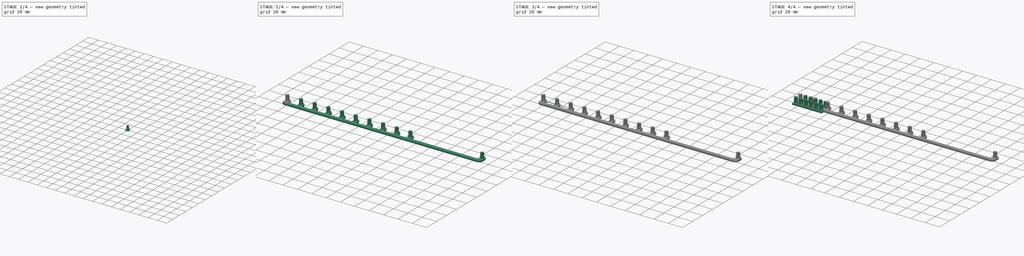
[diagram: build sequence overview — one tinted view per stage of 4, left to right]
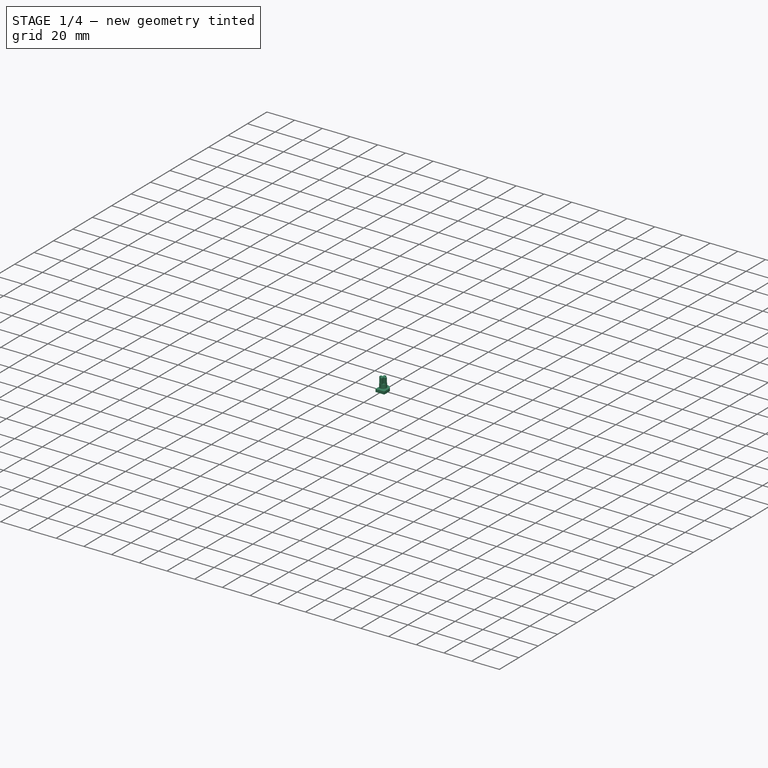
[diagram: stage 1 of 4 — iso view after this stage's code; geometry added in this stage tinted green]
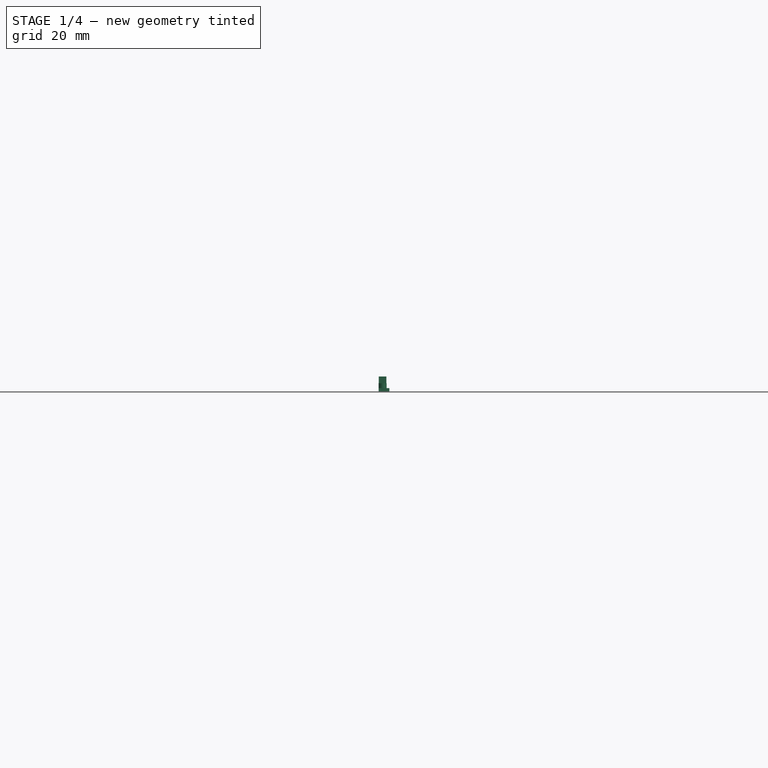
[diagram: stage 1 of 4 — front view after this stage's code; geometry added in this stage tinted green]
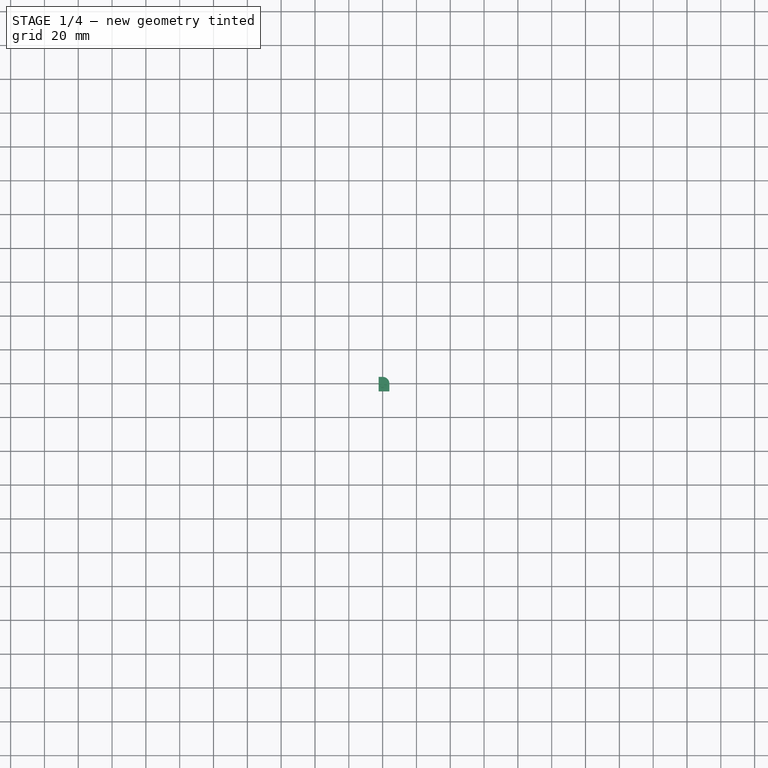
[diagram: stage 1 of 4 — top view after this stage's code; geometry added in this stage tinted green]
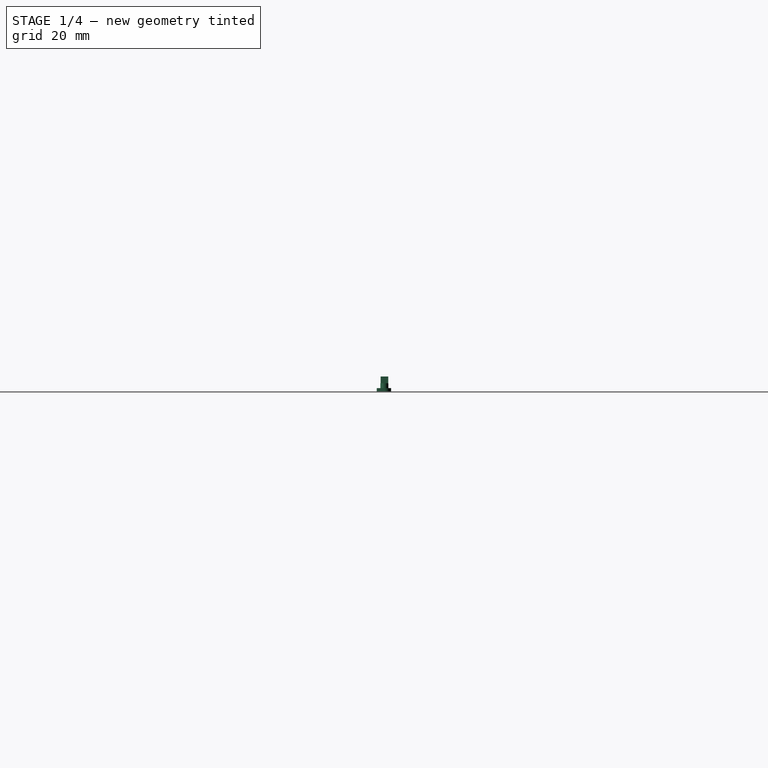
[diagram: stage 1 of 4 — right view after this stage's code; geometry added in this stage tinted green]
FCSTD DOCUMENT  (FreeCAD 0.21R33668 +26 (Git))
Label: ConsoleKeyAdapter
License: All rights reserved
LicenseURL: http://en.wikipedia.org/wiki/All_rights_reserved
objects: Part::FeaturePython×9, Sketcher::SketchObject×4, PartDesign::Pad×4, Part::Part2DObjectPython×2, PartDesign::Body×2, Part::Cylinder×2, Part::Compound×1, PartDesign::SubShapeBinder×1
note: 29 computed .brp shape members not serialized (recipe doc carries the construction recipe); baked Part::Feature solids carry a one-line shape summary decoded from their .brp

FEATURE [Sketcher::SketchObject] Sketch  label="CrossSketch"
  FullyConstrained = true
  MapMode = 5
  Support = -> [XY_Plane]
  sketch-geometry (44):
    g0: LineSegment StartX=-0.725 StartY=2.25 StartZ=0 EndX=0.725 EndY=2.25 EndZ=0
    g1: LineSegment StartX=0.725 StartY=2.25 StartZ=0 EndX=0.725 EndY=1.7375 EndZ=0
    g2: LineSegment StartX=0.725 StartY=1.7375 StartZ=0 EndX=0.775 EndY=1.7375 EndZ=0
    g3: LineSegment StartX=0.775 StartY=1.7375 StartZ=0 EndX=0.775 EndY=1.2375 EndZ=0
    g4: LineSegment StartX=0.775 StartY=1.2375 StartZ=0 EndX=0.725 EndY=1.2375 EndZ=0
    g5: LineSegment StartX=0.725 StartY=1.2375 StartZ=0 EndX=0.725 EndY=0.725 EndZ=0
    g6: LineSegment StartX=0.725 StartY=0.725 StartZ=0 EndX=1.2375 EndY=0.725 EndZ=0
    g7: LineSegment StartX=1.2375 StartY=0.725 StartZ=0 EndX=1.2375 EndY=0.775 EndZ=0
    g8: LineSegment StartX=1.2375 StartY=0.775 StartZ=0 EndX=1.7375 EndY=0.775 EndZ=0
    g9: LineSegment StartX=1.7375 StartY=0.775 StartZ=0 EndX=1.7375 EndY=0.725 EndZ=0
    g10: LineSegment StartX=1.7375 StartY=0.725 StartZ=0 EndX=2.25 EndY=0.725 EndZ=0
    g11: LineSegment StartX=2.25 StartY=0.725 StartZ=0 EndX=2.25 EndY=-0.725 EndZ=0
    g12: LineSegment StartX=2.25 StartY=-0.725 StartZ=0 EndX=1.7375 EndY=-0.725 EndZ=0
    g13: LineSegment StartX=1.7375 StartY=-0.725 StartZ=0 EndX=1.7375 EndY=-0.775 EndZ=0
    g14: LineSegment StartX=1.7375 StartY=-0.775 StartZ=0 EndX=1.2375 EndY=-0.775 EndZ=0
    g15: LineSegment StartX=1.2375 StartY=-0.775 StartZ=0 EndX=1.2375 EndY=-0.725 EndZ=0
    g16: LineSegment StartX=1.2375 StartY=-0.725 StartZ=0 EndX=0.725 EndY=-0.725 EndZ=0
    g17: LineSegment StartX=0.725 StartY=-0.725 StartZ=0 EndX=0.725 EndY=-1.2375 EndZ=0
    g18: LineSegment StartX=0.725 StartY=-1.2375 StartZ=0 EndX=0.775 EndY=-1.2375 EndZ=0
    g19: LineSegment StartX=0.775 StartY=-1.2375 StartZ=0 EndX=0.775 EndY=-1.7375 EndZ=0
    g20: LineSegment StartX=0.775 StartY=-1.7375 StartZ=0 EndX=0.725 EndY=-1.7375 EndZ=0
    g21: LineSegment StartX=0.725 StartY=-1.7375 StartZ=0 EndX=0.725 EndY=-2.25 EndZ=0
    g22: LineSegment StartX=0.725 StartY=-2.25 StartZ=0 EndX=-0.725 EndY=-2.25 EndZ=0
    g23: LineSegment StartX=-0.725 StartY=-2.25 StartZ=0 EndX=-0.725 EndY=-1.7375 EndZ=0
    g24: LineSegment StartX=-0.725 StartY=-1.7375 StartZ=0 EndX=-0.775 EndY=-1.7375 EndZ=0
    g25: LineSegment StartX=-0.775 StartY=-1.7375 StartZ=0 EndX=-0.775 EndY=-1.2375 EndZ=0
    g26: LineSegment StartX=-0.775 StartY=-1.2375 StartZ=0 EndX=-0.725 EndY=-1.2375 EndZ=0
    g27: LineSegment StartX=-0.725 StartY=-1.2375 StartZ=0 EndX=-0.725 EndY=-0.725 EndZ=0
    g28: LineSegment StartX=-0.725 StartY=-0.725 StartZ=0 EndX=-1.2375 EndY=-0.725 EndZ=0
    g29: LineSegment StartX=-1.2375 StartY=-0.725 StartZ=0 EndX=-1.2375 EndY=-0.775 EndZ=0
    g30: LineSegment StartX=-1.2375 StartY=-0.775 StartZ=0 EndX=-1.7375 EndY=-0.775 EndZ=0
    g31: LineSegment StartX=-1.7375 StartY=-0.775 StartZ=0 EndX=-1.7375 EndY=-0.725 EndZ=0
    g32: LineSegment StartX=-1.7375 StartY=-0.725 StartZ=0 EndX=-2.25 EndY=-0.725 EndZ=0
    g33: LineSegment StartX=-2.25 StartY=-0.725 StartZ=0 EndX=-2.25 EndY=0.725 EndZ=0
    g34: LineSegment StartX=-2.25 StartY=0.725 StartZ=0 EndX=-1.7375 EndY=0.725 EndZ=0
    g35: LineSegment StartX=-1.7375 StartY=0.725 StartZ=0 EndX=-1.7375 EndY=0.775 EndZ=0
    g36: LineSegment StartX=-1.7375 StartY=0.775 StartZ=0 EndX=-1.2375 EndY=0.775 EndZ=0
    g37: LineSegment StartX=-1.2375 StartY=0.775 StartZ=0 EndX=-1.2375 EndY=0.725 EndZ=0
    g38: LineSegment StartX=-1.2375 StartY=0.725 StartZ=0 EndX=-0.725 EndY=0.725 EndZ=0
    g39: LineSegment StartX=-0.725 StartY=0.725 StartZ=0 EndX=-0.725 EndY=1.2375 EndZ=0
    g40: LineSegment StartX=-0.725 StartY=1.2375 StartZ=0 EndX=-0.775 EndY=1.2375 EndZ=0
    g41: LineSegment StartX=-0.775 StartY=1.2375 StartZ=0 EndX=-0.775 EndY=1.7375 EndZ=0
    g42: LineSegment StartX=-0.775 StartY=1.7375 StartZ=0 EndX=-0.725 EndY=1.7375 EndZ=0
    g43: LineSegment StartX=-0.725 StartY=1.7375 StartZ=0 EndX=-0.725 EndY=2.25 EndZ=0
  constraints (130):
    c: Horizontal(g0)
    c: Coincident(g0,g1)
    c: Vertical(g1)
    c: Coincident(g1,g2)
    c: Horizontal(g2)
    c: Coincident(g2,g3)
    c: Vertical(g3)
    c: Coincident(g3,g4)
    c: Horizontal(g4)
    c: Coincident(g4,g5)
    c: Vertical(g5)
    c: Coincident(g5,g6)
    c: Horizontal(g6)
    c: Coincident(g6,g7)
    c: Vertical(g7)
    c: Coincident(g7,g8)
    c: Horizontal(g8)
    c: Coincident(g8,g9)
    c: Vertical(g9)
    c: Coincident(g9,g10)
    c: Horizontal(g10)
    c: Coincident(g10,g11)
    c: Vertical(g11)
    c: Coincident(g11,g12)
    c: Horizontal(g12)
    c: Coincident(g12,g13)
    c: Coincident(g13,g14)
    c: Horizontal(g14)
    c: Coincident(g14,g15)
    c: Vertical(g15)
    c: Coincident(g15,g16)
    c: Horizontal(g16)
    c: Coincident(g16,g17)
    c: Vertical(g17)
    c: Coincident(g17,g18)
    c: Horizontal(g18)
    c: Coincident(g18,g19)
    c: Vertical(g19)
    c: Coincident(g19,g20)
    c: Horizontal(g20)
    c: Coincident(g20,g21)
    c: Vertical(g21)
    c: Coincident(g21,g22)
    c: Horizontal(g22)
    c: Coincident(g22,g23)
    c: Vertical(g23)
    c: Coincident(g23,g24)
    c: Horizontal(g24)
    c: Coincident(g24,g25)
    c: Vertical(g25)
    c: Coincident(g25,g26)
    c: Horizontal(g26)
    c: Coincident(g26,g27)
    c: Vertical(g27)
    c: Coincident(g27,g28)
    c: Horizontal(g28)
    c: Coincident(g28,g29)
    c: Vertical(g29)
    c: Coincident(g29,g30)
    c: Horizontal(g30)
    c: Coincident(g30,g31)
    c: Vertical(g31)
    c: Coincident(g31,g32)
    c: Horizontal(g32)
    c: Coincident(g32,g33)
    c: Vertical(g33)
    c: Coincident(g33,g34)
    c: Horizontal(g34)
    c: Coincident(g34,g35)
    c: Vertical(g35)
    c: Coincident(g35,g36)
    c: Horizontal(g36)
    c: Coincident(g36,g37)
    c: Vertical(g37)
    c: Coincident(g37,g38)
    c: Horizontal(g38)
    c: Coincident(g38,g39)
    c: Vertical(g39)
    c: Coincident(g39,g40)
    c: Horizontal(g40)
    c: Coincident(g40,g41)
    c: Vertical(g41)
    c: Coincident(g41,g42)
    c: Horizontal(g42)
    c: Coincident(g42,g43)
    c: Coincident(g43,g0)
    c: Vertical(g43)
    c: Horizontal(g38,g5)
    c: Vertical(g38,g27)
    c: Vertical(g26,g23)
    c: Vertical(g17,g20)
    c: Vertical(g1,g4)
    c: Vertical(g42,g39)
    c: Vertical(g34,g31)
    c: Vertical(g37,g28)
    c: Vertical(g6,g15)
    c: Vertical(g9,g12)
    c: Vertical(g13)
    c: Horizontal(g42,g1)
    c: Horizontal(g39,g4)
    c: Horizontal(g26,g17)
    c: Horizontal(g23,g20)
    c: Horizontal(g29,g14)
    c: Horizontal(g36,g7)
    c: Horizontal(g9,g6)
    c: Horizontal(g34,g37)
    c: Vertical(g3,g18)
    c: Vertical(g40,g25)
    c: Symmetric(g27,g5,g-1)
    c: Symmetric(g38,g16,g-1)
    c: Equal(g2,g7)
    c: Equal(g2,g42)
    c: Equal(g43,g39)
    c: Equal(g34,g38)
    c: Equal(g39,g38)
    c: Horizontal(g31,g28)
    c: Horizontal(g15,g12)
    c: Equal(g2,g15)
    c: Equal(g6,g10)
    c: Equal(g38,g6)
    c: Equal(g0,g33)
    c: Equal(g19,g3)
    c: Equal(g8,g3)
    c: Equal(g36,g8)
    c: Equal(g21,g17)
    c: Equal(g5,g17)
    c: DistanceX(g2,g2) = 0.05
    c: DistanceX(g36,g36) = 0.5
    c: DistanceX(g0,g0) = 1.45
    c: DistanceX(g33,g10) = 4.5
FEATURE [PartDesign::Pad] Pad  label="CrossPad"
  Direction = (0,0,1)
  Length = 4
  Length2 = 10
  Profile = -> Sketch
  ReferenceAxis = -> Sketch [N_Axis]
  Type = 0
FEATURE [Part::Part2DObjectPython] LinearArray  # Draft 2D object (typed FeaturePython)
  Alignment = 0
  AttacherType = Attacher::AttachEngine3D
  CellStart = A1
  Count = 6
  Dir = (1,0,0)
  DirIsDriven = true
  DistributionLaw = 0
  DrivenProperty = 1
  EndInclusive = true
  ExposePlacement = false
  GeneratorMode = 1
  MarkerShape = 1
  MarkerSize = 0
  NumElements = 6
  OrientMode = 1
  Point = (0,0,0)
  PointIsDriven = true
  Reverse = false
  SpanEnd = 0
  SpanStart = 0
  Step = 7
  Type = lattice2LinearArray.LinearArray
  VSGVersion = 1
  Values = 0.0 | 7.0 | 14.0 | 21.0 | 28.0 | 35.0
  ValuesSource = 2
  isLattice = 1
FEATURE [Part::Part2DObjectPython] LinearArray001  # Draft 2D object (typed FeaturePython)
  Alignment = 0
  AttacherType = Attacher::AttachEngine3D
  CellStart = A1
  Count = 2
  Dir = (0,-1,0)
  DirIsDriven = true
  DistributionLaw = 0
  DrivenProperty = 1
  EndInclusive = true
  ExposePlacement = false
  GeneratorMode = 1
  MarkerShape = 1
  MarkerSize = 0
  NumElements = 2
  OrientMode = 0
  Point = (0,0,0)
  PointIsDriven = true
  Reverse = false
  SpanEnd = 9
  SpanStart = 0
  Step = 9
  Type = lattice2LinearArray.LinearArray
  VSGVersion = 1
  Values = 0.0 | 9.0
  ValuesSource = 2
  isLattice = 1
FEATURE [Sketcher::SketchObject] Sketch001  label="StemSketch"
  ExternalGeometry = -> [Pad]
  FullyConstrained = true
  MapMode = 5
  Support = -> [XY_Plane]
  sketch-geometry (1):
    g0: Circle CenterX=0 CenterY=0 CenterZ=0 NormalX=0 NormalY=0 NormalZ=1 AngleXU=0 Radius=2.36392
  constraints (2):
    c: Coincident(g0,g-1)
    c: PointOnObject(g-3,g0)
FEATURE [PartDesign::Pad] Pad001  label="StemPad"
  BaseFeature = -> Pad
  Direction = (0,0,1)
  Length = 2.9
  Length2 = 10
  Profile = -> Sketch001
  ReferenceAxis = -> Sketch001 [N_Axis]
  Reversed = true
  Type = 0
FEATURE [Sketcher::SketchObject] Sketch002  label="BaseSketch"
  ExternalGeometry = -> [Pad001]
  FullyConstrained = true
  MapMode = 5
  Placement = pos=(0,0,-2.9) rot=(1,0,0;3.14159rad)
  Support = -> [Pad001]
  sketch-geometry (5):
    g0: LineSegment StartX=-2.36392 StartY=-4 StartZ=0 EndX=-2.36392 EndY=4.5 EndZ=0
    g1: LineSegment StartX=-2.36392 StartY=4.5 StartZ=0 EndX=4 EndY=4.5 EndZ=0
    g2: ArcOfCircle CenterX=0 CenterY=0 CenterZ=0 NormalX=0 NormalY=0 NormalZ=1 AngleXU=0 Radius=4 StartAngle=4.71239 EndAngle=6.28319
    g3: LineSegment StartX=-7e-16 StartY=-4 StartZ=0 EndX=-2.36392 EndY=-4 EndZ=0
    g4: LineSegment StartX=4 StartY=4.5 StartZ=0 EndX=4 EndY=-9e-16 EndZ=0
  constraints (14):
    c: Vertical(g0)
    c: Coincident(g0,g1)
    c: Horizontal(g1)
    c: Tangent(g2,g3) = 1.5708
    c: Coincident(g3,g0)
    c: Horizontal(g3)
    c: Coincident(g2,g-3)
    c: Tangent(g0,g-3)
    c: Diameter(g2) = 8
    c: PointOnObject(g2,g-1)
    c: Coincident(g4,g1)
    c: Coincident(g4,g2)
    c: Vertical(g4)
    c: DistanceY(g4,g4) = 4.5
FEATURE [PartDesign::Pad] Pad002  label="BasePad"
  BaseFeature = -> Pad001
  Direction = (0,0,-1)
  Length = 2
  Length2 = 10
  Profile = -> Sketch002
  ReferenceAxis = -> Sketch002 [N_Axis]
  Type = 0
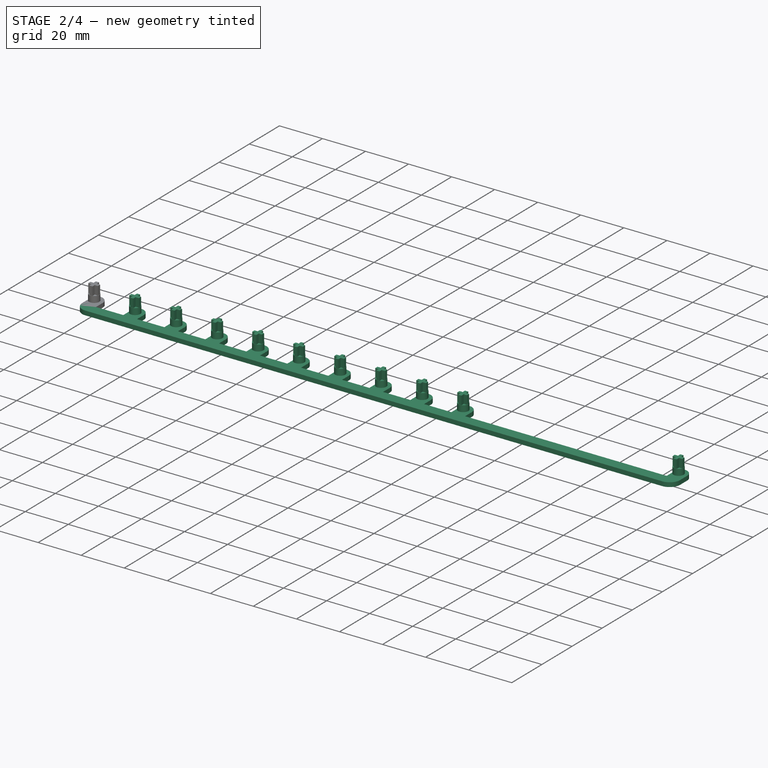
[diagram: stage 2 of 4 — iso view after this stage's code; geometry added in this stage tinted green]
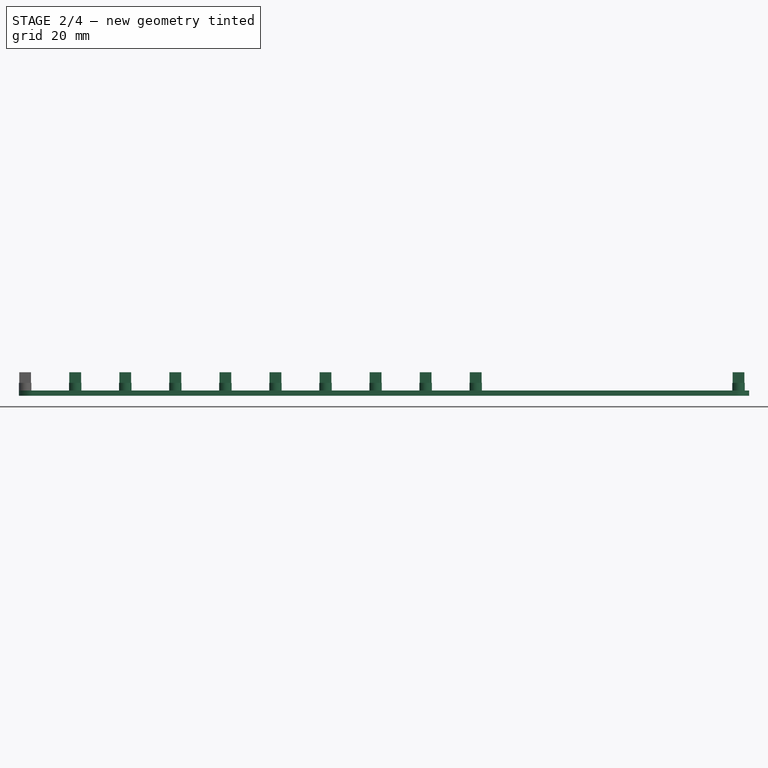
[diagram: stage 2 of 4 — front view after this stage's code; geometry added in this stage tinted green]
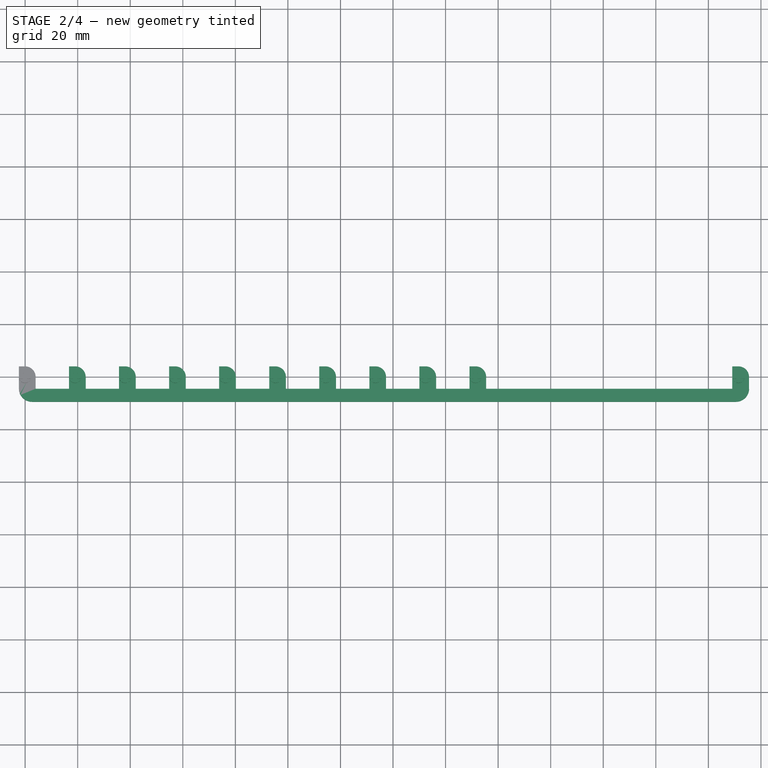
[diagram: stage 2 of 4 — top view after this stage's code; geometry added in this stage tinted green]
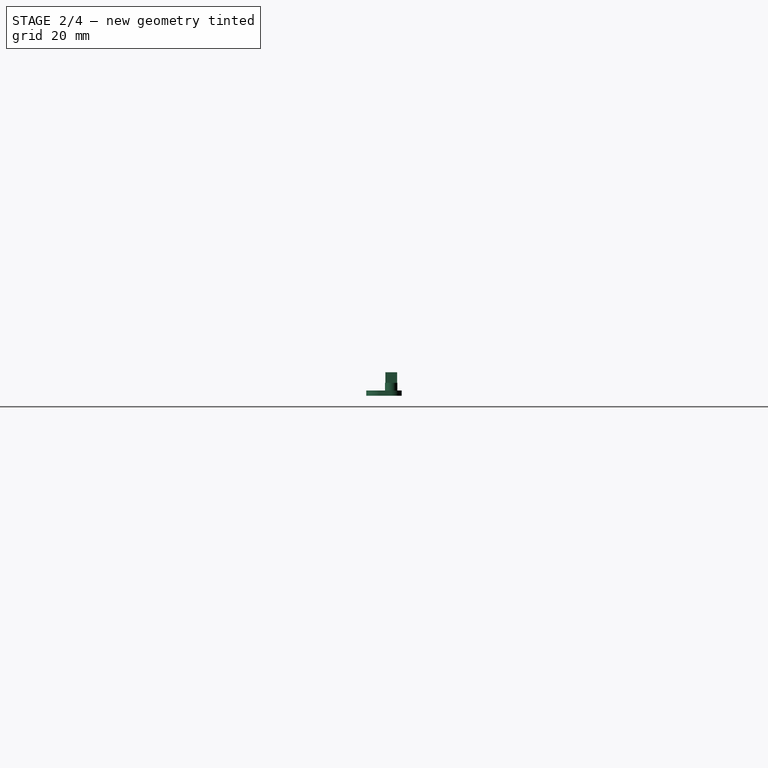
[diagram: stage 2 of 4 — right view after this stage's code; geometry added in this stage tinted green]
FEATURE [Part::FeaturePython] LinearArray002  label="10ConsoleKeysLinearArray"  # WARN: FeaturePython — macro-defined, semantics opaque (R4)
  Alignment = 0
  CellStart = A1
  Count = 10
  Dir = (1,0,0)
  DirIsDriven = true
  DistributionLaw = 0
  DrivenProperty = 1
  EndInclusive = true
  ExposePlacement = false
  GeneratorMode = 1
  MarkerShape = 1
  MarkerSize = 0
  NumElements = 10
  OrientMode = 1
  Point = (0,0,0)
  PointIsDriven = true
  Reverse = false
  SpanEnd = 10
  SpanStart = 0
  Step = 19.05
  Type = lattice2LinearArray.LinearArray
  VSGVersion = 1
  Values = 0.0 | 19.05 | 38.1 | 57.150000000000006 | 76.2 | 95.25 | 114.30000000000001 | 133.35 | 152.4 | 171.45000000000002
  ValuesSource = 2
  isLattice = 1
FEATURE [Part::FeaturePython] LinearArray003  label="ResetKeyLinearArray"  # WARN: FeaturePython — macro-defined, semantics opaque (R4)
  Alignment = 0
  CellStart = A1
  Count = 1
  Dir = (1,0,0)
  DirIsDriven = true
  DistributionLaw = 0
  DrivenProperty = 1
  EndInclusive = true
  ExposePlacement = false
  GeneratorMode = 1
  MarkerShape = 1
  MarkerSize = 20
  NumElements = 1
  Offset = 14.25
  OrientMode = 1
  Point = (0,0,0)
  PointIsDriven = true
  Reverse = false
  SpanEnd = 50
  SpanStart = 0
  Step = 19.05
  Type = lattice2LinearArray.LinearArray
  VSGVersion = 1
  Values = 271.46250000000003
  ValuesSource = 2
  isLattice = 1
FEATURE [Part::FeaturePython] Join  # WARN: FeaturePython — macro-defined, semantics opaque (R4)
  ExposePlacement = false
  Interleave = false
  Links = -> [LinearArray002,LinearArray003]
  MarkerShape = 1
  MarkerSize = 0
  NumElements = 11
  Type = lattice2JoinArrays.JoinArrays
  isLattice = 1
FEATURE [Part::FeaturePython] Populate004  label="Populate Join with BasePad"  # WARN: FeaturePython — macro-defined, semantics opaque (R4)
  Copying = 0
  ExposePlacement = false
  MarkerShape = 1
  MarkerSize = 0
  NumElements = 0
  Object = -> Pad002
  OutputCompounding = 1
  PlacementsTo = -> Join
  Referencing = 0
  Type = lattice2PopulateCopies.LatticePopulateCopies
  isLattice = 0
FEATURE [PartDesign::SubShapeBinder] Binder
  BindCopyOnChange = 0
  BindMode = 0
  ClaimChildren = false
  Context = -> Body [Binder.]
  Fuse = false
  MakeFace = true
  OffsetFill = false
  OffsetIntersection = false
  OffsetJoinType = 0
  OffsetOpenResult = false
  PartialLoad = false
  Relative = true
  Support = -> [Pad002]
  _Version = 2
FEATURE [Sketcher::SketchObject] Sketch003
  ExternalGeometry = -> [Binder]
  FullyConstrained = true
  MapMode = 5
  Support = -> [XY_Plane001]
  sketch-geometry (4):
    g0: LineSegment StartX=-2.36392 StartY=-4.5 StartZ=0 EndX=275.496 EndY=-4.5 EndZ=0
    g1: ArcOfCircle CenterX=270.496 CenterY=-4.5 CenterZ=0 NormalX=0 NormalY=0 NormalZ=1 AngleXU=0 Radius=5 StartAngle=4.71239 EndAngle=6.28319
    g2: LineSegment StartX=270.496 StartY=-9.5 StartZ=0 EndX=2.63608 EndY=-9.5 EndZ=0
    g3: ArcOfCircle CenterX=2.63608 CenterY=-4.5 CenterZ=0 NormalX=0 NormalY=0 NormalZ=1 AngleXU=0 Radius=5 StartAngle=3.14159 EndAngle=4.71239
  constraints (12):
    c: Horizontal(g0)
    c: Perpendicular(g0,g1) = 1.5708
    c: Coincident(g1,g2)
    c: Horizontal(g2)
    c: Coincident(g3,g0)
    c: PointOnObject(g3,g0)
    c: Vertical(g3,g2)
    c: Coincident(g3,g2)
    c: DistanceY(g2,g3) = 5
    c: Vertical(g1,g1)
    c: DistanceX(g0,g0) = 277.86
    c: Coincident(g0,g-3)
FEATURE [PartDesign::Pad] Pad003
  Direction = (0,0,1)
  Length = 2
  Length2 = 10
  Profile = -> Sketch003
  ReferenceAxis = -> Sketch003 [N_Axis]
  Type = 0
FEATURE [PartDesign::Body] Body001  label="Body"
  Group = -> [Sketch003,Binder,Pad003]
  Origin = -> Origin001
  Placement = pos=(0,0,-4.9) rot=(0,0,1;0rad)
  Tip = -> Pad003
FEATURE [Part::FeaturePython] Connect  # WARN: FeaturePython — macro-defined, semantics opaque (R4)
  Objects = -> [Body001,Populate004]
  Refine = true
  Tolerance = 0
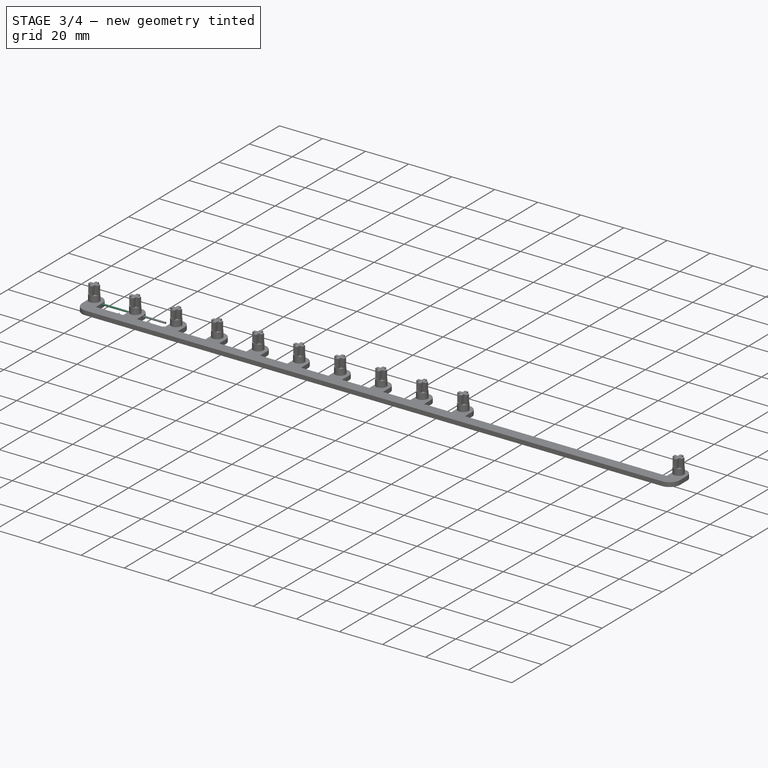
[diagram: stage 3 of 4 — iso view after this stage's code; geometry added in this stage tinted green]
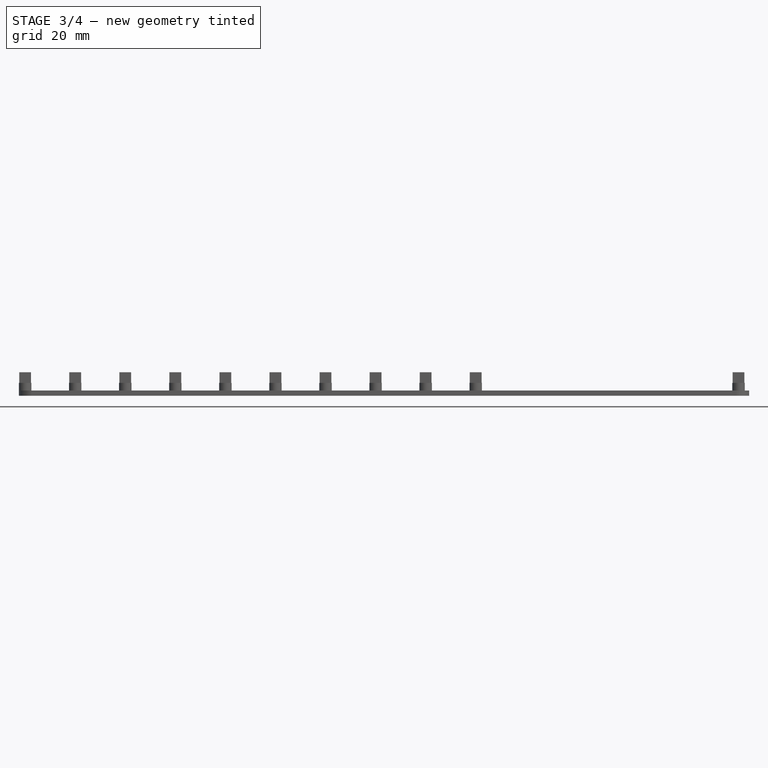
[diagram: stage 3 of 4 — front view after this stage's code; geometry added in this stage tinted green]
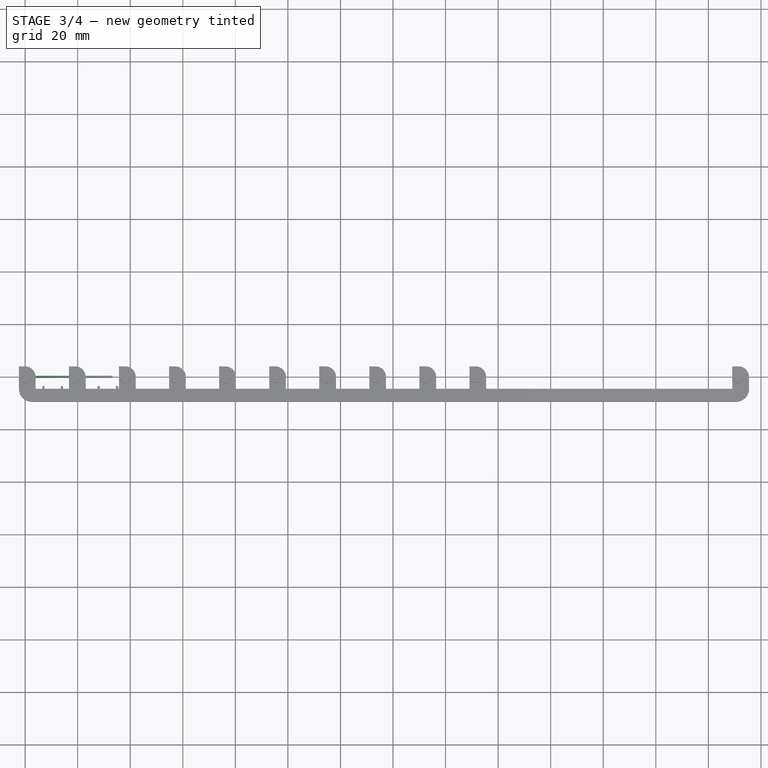
[diagram: stage 3 of 4 — top view after this stage's code; geometry added in this stage tinted green]
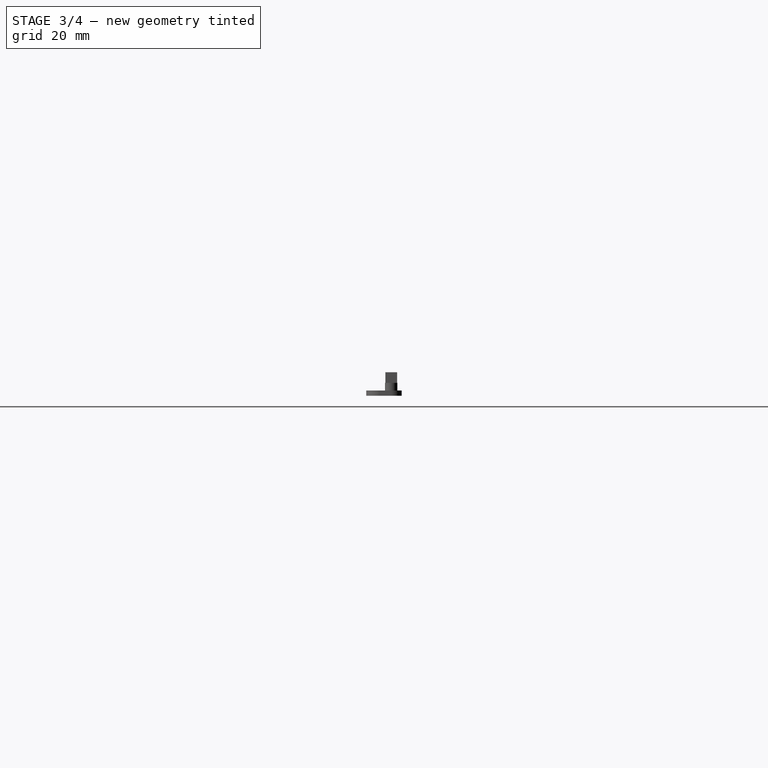
[diagram: stage 3 of 4 — right view after this stage's code; geometry added in this stage tinted green]
FEATURE [Part::Cylinder] Cylinder
  Angle = 360
  AttacherType = Attacher::AttachEngine3D
  FirstAngle = 0
  Height = 2
  Placement = pos=(0,-3.5,-3.5) rot=(1,0,0;1.5708rad)
  Radius = 0.4
  SecondAngle = 0
FEATURE [Part::FeaturePython] Populate002  label="Populate LinearArray with Cylinder"  # WARN: FeaturePython — macro-defined, semantics opaque (R4)
  Copying = 0
  ExposePlacement = false
  MarkerShape = 1
  MarkerSize = 0
  NumElements = 0
  Object = -> Cylinder
  OutputCompounding = 1
  PlacementsTo = -> LinearArray
  Referencing = 0
  Type = lattice2PopulateCopies.LatticePopulateCopies
  isLattice = 0
FEATURE [Part::Cylinder] Cylinder001
  Angle = 360
  AttacherType = Attacher::AttachEngine3D
  FirstAngle = 0
  Height = 30
  Placement = pos=(3.25,0,-3.5) rot=(0,1,0;1.5708rad)
  Radius = 0.4
  SecondAngle = 0
FEATURE [Part::FeaturePython] Populate003  label="Populate LinearArray001 with Cylinder001"  # WARN: FeaturePython — macro-defined, semantics opaque (R4)
  Copying = 0
  ExposePlacement = false
  MarkerShape = 1
  MarkerSize = 0
  NumElements = 0
  Object = -> Cylinder001
  OutputCompounding = 1
  PlacementsTo = -> LinearArray001
  Referencing = 0
  Type = lattice2PopulateCopies.LatticePopulateCopies
  isLattice = 0
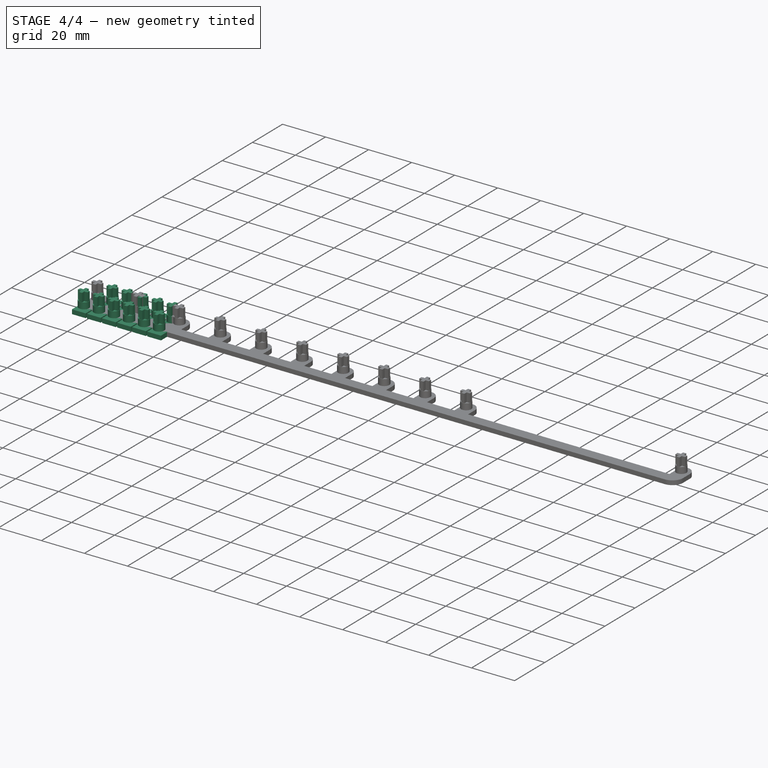
[diagram: stage 4 of 4 — iso view after this stage's code; geometry added in this stage tinted green]
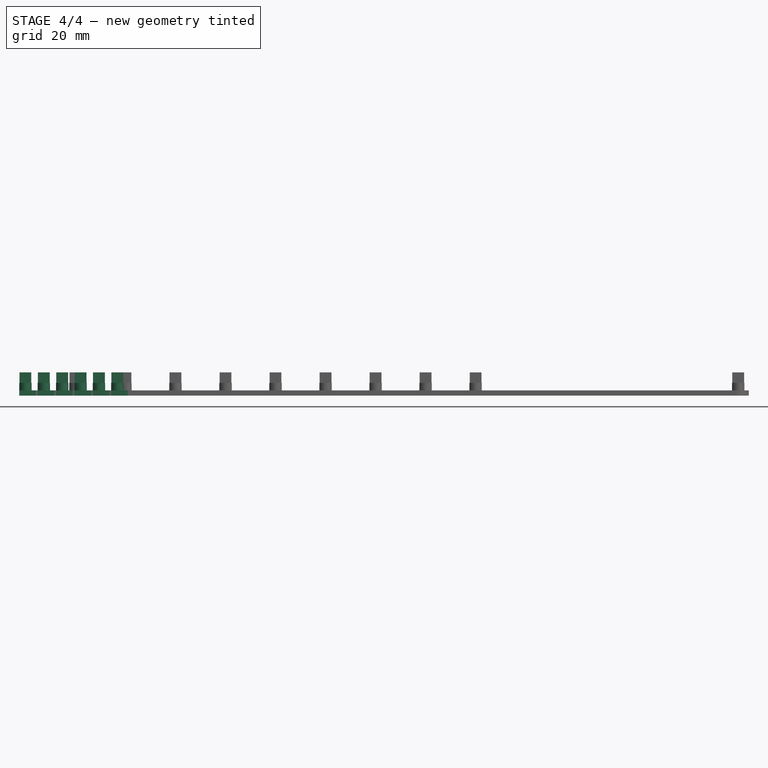
[diagram: stage 4 of 4 — front view after this stage's code; geometry added in this stage tinted green]
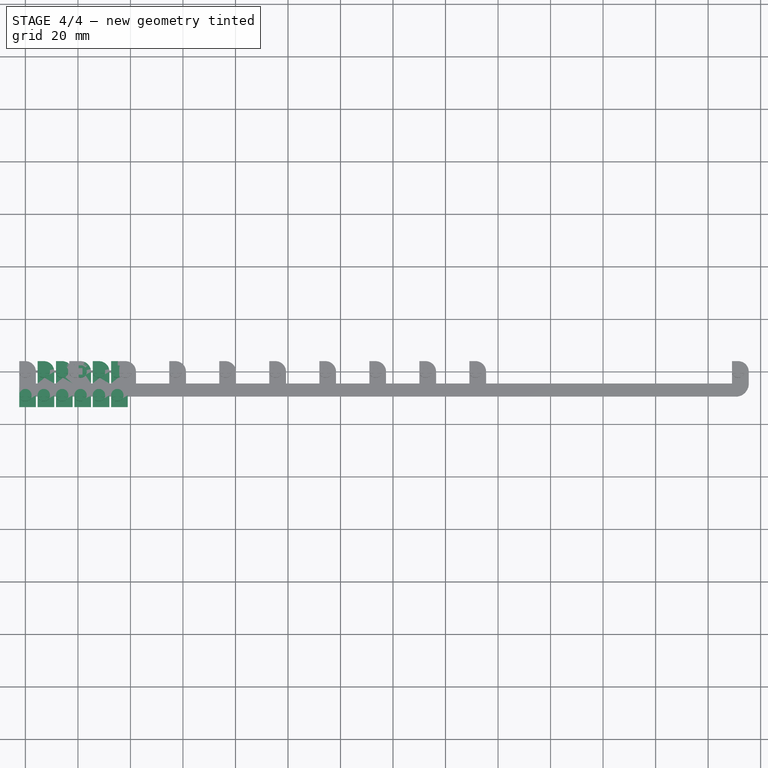
[diagram: stage 4 of 4 — top view after this stage's code; geometry added in this stage tinted green]
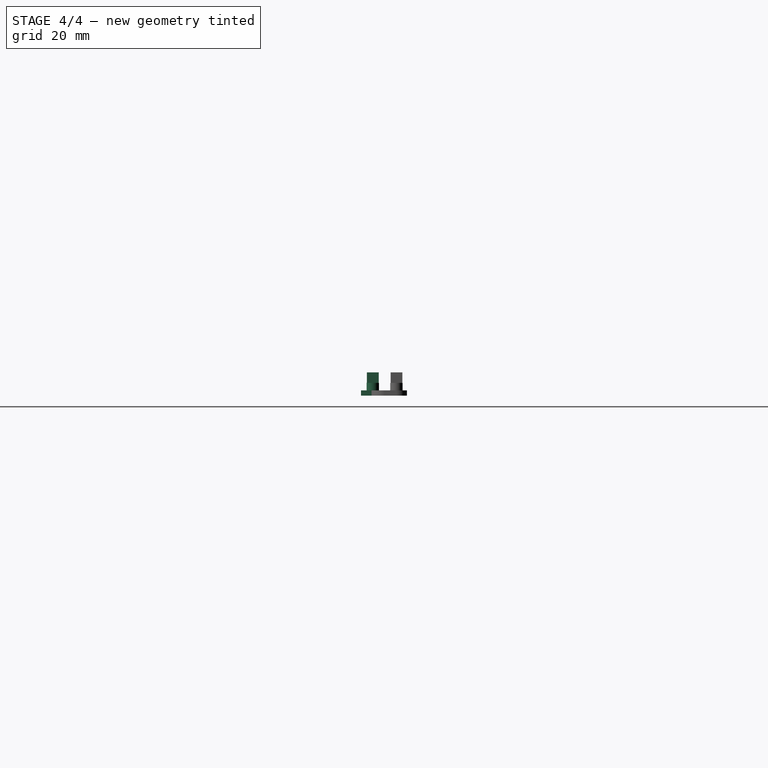
[diagram: stage 4 of 4 — right view after this stage's code; geometry added in this stage tinted green]
FEATURE [PartDesign::Body] Body  label="ConsoleKeyAdapterBody"
  Group = -> [Sketch,Pad,Sketch001,Pad001,Sketch002,Pad002]
  Origin = -> Origin
  Tip = -> Pad002
FEATURE [Part::FeaturePython] Populate  label="Populate LinearArray with BasePad"  # WARN: FeaturePython — macro-defined, semantics opaque (R4)
  Copying = 0
  ExposePlacement = false
  MarkerShape = 1
  MarkerSize = 0
  NumElements = 0
  Object = -> Pad002
  OutputCompounding = 1
  PlacementsTo = -> LinearArray
  Referencing = 0
  Type = lattice2PopulateCopies.LatticePopulateCopies
  isLattice = 0
FEATURE [Part::FeaturePython] Populate001  label="Populate LinearArray001 with Populate LinearArray with BasePad"  # WARN: FeaturePython — macro-defined, semantics opaque (R4)
  Copying = 0
  ExposePlacement = false
  MarkerShape = 1
  MarkerSize = 0
  NumElements = 0
  Object = -> Populate
  OutputCompounding = 1
  PlacementsTo = -> LinearArray001
  Referencing = 0
  Type = lattice2PopulateCopies.LatticePopulateCopies
  isLattice = 0
FEATURE [Part::Compound] Compound
  Links = -> [Populate001,Populate002,Populate003]
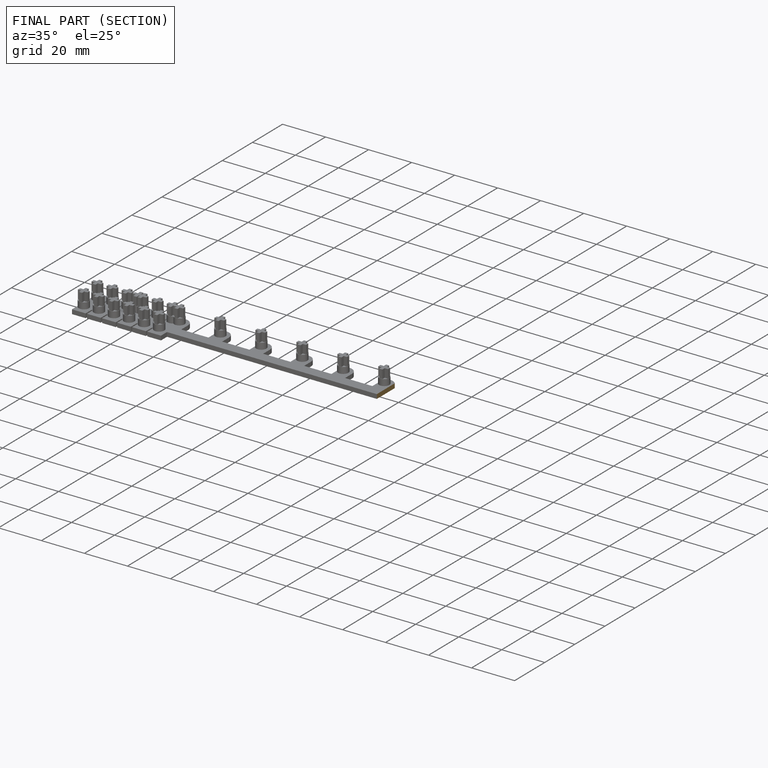
[diagram: finished part — half-section view (interior)]
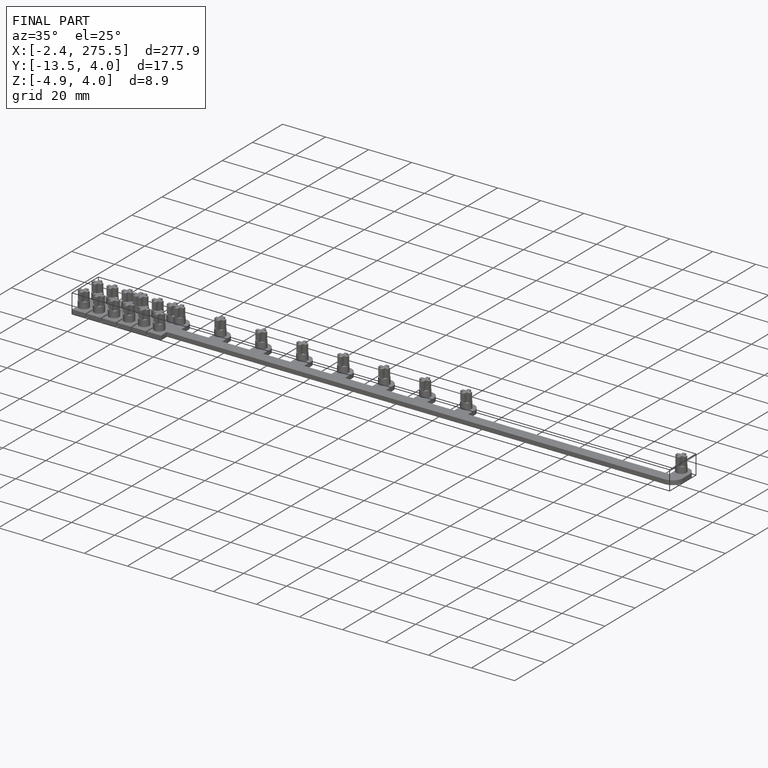
[diagram: finished part — iso view with bounding-box wireframe]
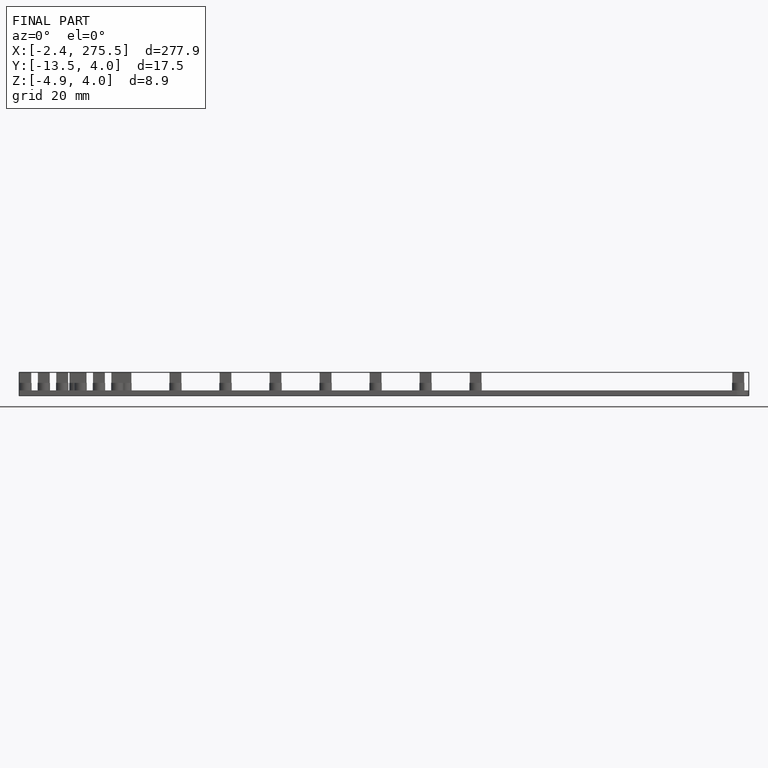
[diagram: finished part — front view with bounding-box wireframe]
